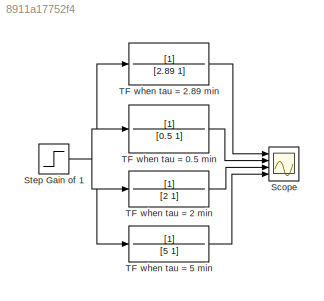
MODEL slx_8911a17752f4
KIND model
CONFIG AbsTol = auto
CONFIG EnableMultiTasking = off
CONFIG FixedStep = auto
CONFIG MaxStep = auto
CONFIG MinStep = auto
CONFIG RelTol = 1e-3
CONFIG SampleTimeConstraint = Unconstrained
CONFIG SolverName = VariableStepAuto
CONFIG StartTime = 0.0
CONFIG StopTime = 25
BLOCK [Scope] Scope
  Floating = off
  NumInputPorts = 4
  Ports = [4]
  ScopeSpecificationString = Simulink.scopes.TimeScopeBlockCfg('CurrentConfiguration', extmgr.ConfigurationSet(extmgr.Configuration('Core','General UI',true),extmgr.Configuration('Core','Source UI',true),extmgr.Configuration('Sources','WiredSimulink',true,'DataLogging',true,'DataLoggingSaveFormat','StructureWithTime'),extmgr.Configuration('Visuals','Time Domain',true,'SerializedDisplays',{struct('MinYLimReal','-50.00000','Max...<+1588ch>
BLOCK [Step] Step Gain of 1
  SampleTime = 0
BLOCK [TransferFcn] TF when tau = 0.5 min
  Denominator = [0.5 1]
BLOCK [TransferFcn] TF when tau = 2 min
  Denominator = [2 1]
BLOCK [TransferFcn] TF when tau = 2.89 min
  Denominator = [2.89 1]
BLOCK [TransferFcn] TF when tau = 5 min
  Denominator = [5 1]
NET Step Gain of 1:1 -> TF when tau = 0.5 min:1, TF when tau = 2 min:1, TF when tau = 2.89 min:1, TF when tau = 5 min:1
LINE TF when tau = 0.5 min:1 -> Scope:2
LINE TF when tau = 2 min:1 -> Scope:3
LINE TF when tau = 2.89 min:1 -> Scope:1
LINE TF when tau = 5 min:1 -> Scope:4
note: NET lines group one-source signal fan-out (src -> all destinations, sorted); 1:1 wires keep LINE
